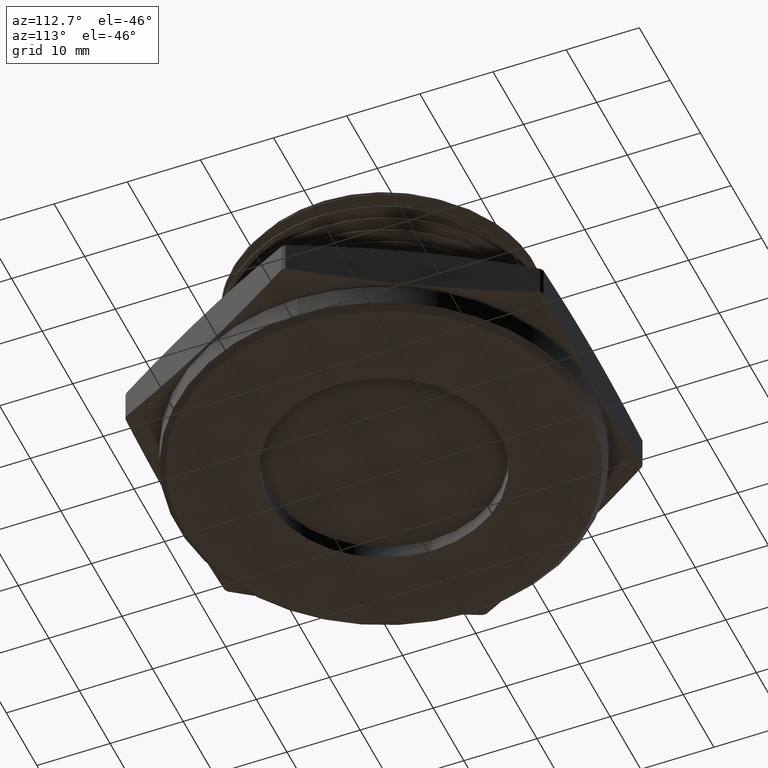
[diagram: clean part render]
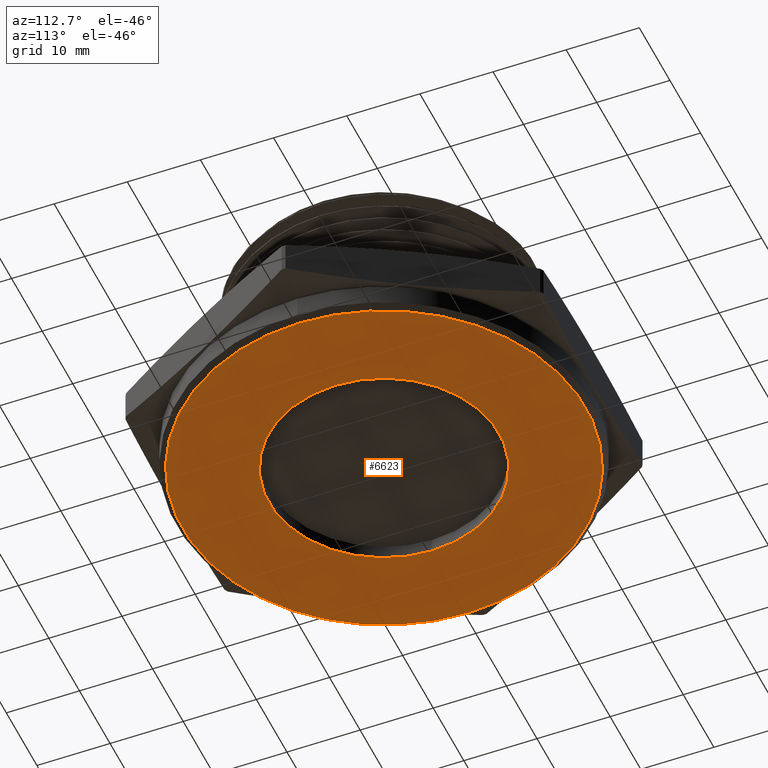
[diagram: same view with one face highlighted and labeled with its STEP entity id]
A machine part, auxiliary view. The second image highlights one B-rep face of the part: STEP entity #6623.
In plain terms, the highlighted planar face has unit normal (0, 0, -1).
Its self-contained STEP definition (entity closure, byte-faithful):
#20 = CIRCLE ( 'NONE', #4154, 1.085000000000001500 ) ;
#21 = CIRCLE ( 'NONE', #4153, 0.6200000000000002200 ) ;
#48 = CIRCLE ( 'NONE', #4168, 1.085000000000001500 ) ;
#60 = CIRCLE ( 'NONE', #4172, 0.6200000000000002200 ) ;
#120 = FACE_BOUND ( 'NONE', #4808, .T. ) ;
#147 = FACE_OUTER_BOUND ( 'NONE', #4811, .T. ) ;
#2577 = ORIENTED_EDGE ( 'NONE', *, *, #4078, .T. ) ;
#2578 = ORIENTED_EDGE ( 'NONE', *, *, #4044, .T. ) ;
#2579 = ORIENTED_EDGE ( 'NONE', *, *, #4070, .T. ) ;
#2580 = ORIENTED_EDGE ( 'NONE', *, *, #4045, .T. ) ;
#4044 = EDGE_CURVE ( 'NONE', #6635, #6221, #21, .T. ) ;
#4045 = EDGE_CURVE ( 'NONE', #6222, #6316, #20, .T. ) ;
#4070 = EDGE_CURVE ( 'NONE', #6316, #6222, #48, .T. ) ;
#4078 = EDGE_CURVE ( 'NONE', #6221, #6635, #60, .T. ) ;
#4153 = AXIS2_PLACEMENT_3D ( 'NONE', #4266, #4267, #4268 ) ;
#4154 = AXIS2_PLACEMENT_3D ( 'NONE', #4271, #4272, #4273 ) ;
#4168 = AXIS2_PLACEMENT_3D ( 'NONE', #4505, #4506, #4507 ) ;
#4172 = AXIS2_PLACEMENT_3D ( 'NONE', #4526, #4527, #4528 ) ;
#4201 = AXIS2_PLACEMENT_3D ( 'NONE', #5704, #5703, #5707 ) ;
#4266 = CARTESIAN_POINT ( 'NONE',  ( 3.673940397442165500E-018, 0.0000000000000000000, -0.1499999999999999900 ) ) ;
#4267 = DIRECTION ( 'NONE',  ( -0.0000000000000000000, -0.0000000000000000000, 1.000000000000000000 ) ) ;
#4268 = DIRECTION ( 'NONE',  ( 1.000000000000000000, 0.0000000000000000000, 0.0000000000000000000 ) ) ;
#4271 = CARTESIAN_POINT ( 'NONE',  ( 0.0000000000000000000, 0.0000000000000000000, -0.1499999999999999900 ) ) ;
#4272 = DIRECTION ( 'NONE',  ( 0.0000000000000000000, 0.0000000000000000000, -1.000000000000000000 ) ) ;
#4273 = DIRECTION ( 'NONE',  ( -1.000000000000000000, 0.0000000000000000000, 0.0000000000000000000 ) ) ;
#4505 = CARTESIAN_POINT ( 'NONE',  ( 0.0000000000000000000, 0.0000000000000000000, -0.1499999999999999900 ) ) ;
#4506 = DIRECTION ( 'NONE',  ( 0.0000000000000000000, 0.0000000000000000000, -1.000000000000000000 ) ) ;
#4507 = DIRECTION ( 'NONE',  ( -1.000000000000000000, 0.0000000000000000000, 0.0000000000000000000 ) ) ;
#4526 = CARTESIAN_POINT ( 'NONE',  ( 3.673940397442165500E-018, 0.0000000000000000000, -0.1499999999999999900 ) ) ;
#4527 = DIRECTION ( 'NONE',  ( -0.0000000000000000000, -0.0000000000000000000, 1.000000000000000000 ) ) ;
#4528 = DIRECTION ( 'NONE',  ( 1.000000000000000000, 0.0000000000000000000, 0.0000000000000000000 ) ) ;
#4808 = EDGE_LOOP ( 'NONE', ( #2578, #2577 ) ) ;
#4811 = EDGE_LOOP ( 'NONE', ( #2580, #2579 ) ) ;
#5548 = CARTESIAN_POINT ( 'NONE',  ( 1.085000000000001500, 0.0000000000000000000, -0.1499999999999999900 ) ) ;
#5565 = CARTESIAN_POINT ( 'NONE',  ( -0.6200000000000002200, 7.592810154713592800E-017, -0.1499999999999999900 ) ) ;
#5640 = CARTESIAN_POINT ( 'NONE',  ( -1.085000000000001500, 1.347111479062089500E-016, -0.1499999999999999900 ) ) ;
#5703 = DIRECTION ( 'NONE',  ( 0.0000000000000000000, 0.0000000000000000000, -1.000000000000000000 ) ) ;
#5704 = CARTESIAN_POINT ( 'NONE',  ( 0.0000000000000000000, 0.0000000000000000000, -0.1499999999999999900 ) ) ;
#5705 = PLANE ( 'NONE',  #4201 ) ;
#5707 = DIRECTION ( 'NONE',  ( -1.000000000000000000, 0.0000000000000000000, -0.0000000000000000000 ) ) ;
#5717 = CARTESIAN_POINT ( 'NONE',  ( 0.6200000000000002200, 0.0000000000000000000, -0.1499999999999999900 ) ) ;
#6221 = VERTEX_POINT ( 'NONE', #5565 ) ;
#6222 = VERTEX_POINT ( 'NONE', #5548 ) ;
#6316 = VERTEX_POINT ( 'NONE', #5640 ) ;
#6623 = ADVANCED_FACE ( 'NONE', ( #147, #120 ), #5705, .T. ) ;
#6635 = VERTEX_POINT ( 'NONE', #5717 ) ;